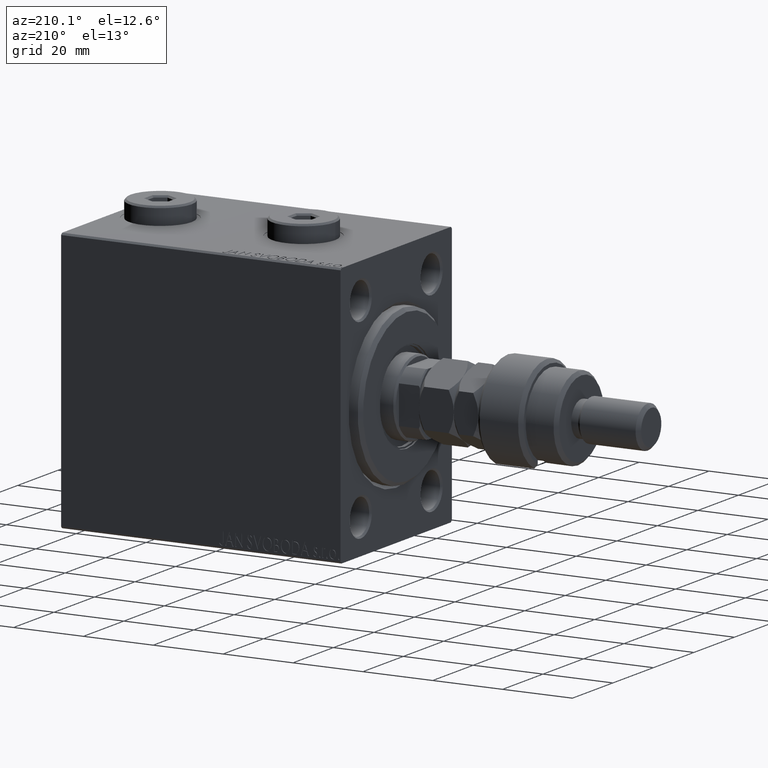
[diagram: clean part render]
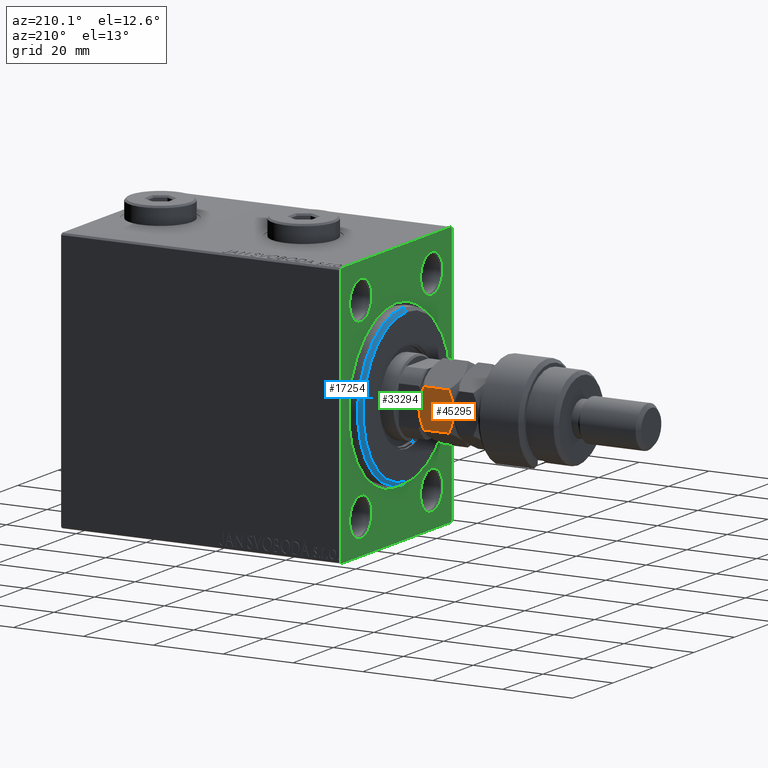
[diagram: same view with three faces highlighted in distinct colors, each labeled with its STEP entity id]
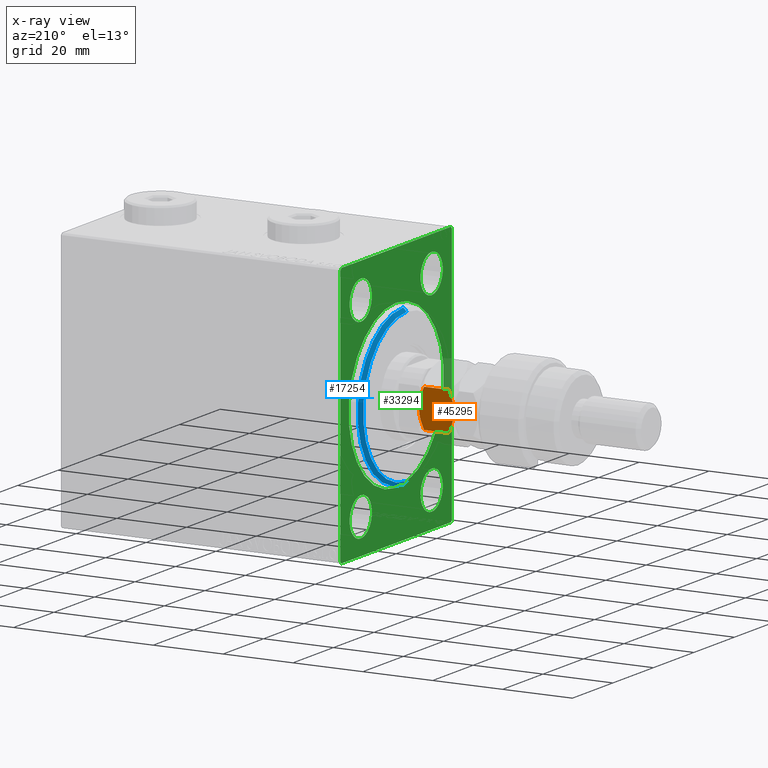
[diagram: x-ray of the same camera — body ghosted, the three highlighted faces saturated]
A machine part, auxiliary view with three faces highlighted in distinct colors.
The next image is the same camera in x-ray (body ghosted, the three faces saturated) — at least one of them is partly hidden behind the body in this view.
Their STEP definitions:

[orange] entity #45295 — the highlighted planar face has unit normal (0, -1, -0).
#1043 = CARTESIAN_POINT ( 'NONE',  ( -4.333978297711722938, 8.467431577757031036, 9.999999999999998224 ) ) ;
#2668 = PLANE ( 'NONE',  #18258 ) ;
#4012 = B_SPLINE_CURVE_WITH_KNOTS ( 'NONE', 3,
 ( #38750, #30655, #42665, #15713, #38495, #22820, #1043, #19150 ),
 .UNSPECIFIED., .F., .F.,
 ( 4, 2, 2, 4 ),
 ( 2.544312669947217931E-07, 0.002843014744722341131, 0.004264394901450013070, 0.005685775058177684575 ),
 .UNSPECIFIED. ) ;
#4520 = CARTESIAN_POINT ( 'NONE',  ( -4.749999999999993783, 8.227241335952166779, 10.00000000000000000 ) ) ;
#5270 = VERTEX_POINT ( 'NONE', #4520 ) ;
#6770 = CARTESIAN_POINT ( 'NONE',  ( -6.388382028668171841, 7.281321030665156790, 9.854124384224531852 ) ) ;
#9127 = EDGE_LOOP ( 'NONE', ( #37164, #19163, #16871, #38921, #23278, #17433 ) ) ;
#11452 = EDGE_CURVE ( 'NONE', #5270, #35434, #23185, .T. ) ;
#11535 = CARTESIAN_POINT ( 'NONE',  ( -3.111617971331824162, 9.173161641239182984, 0.1458756157754679816 ) ) ;
#11626 = CARTESIAN_POINT ( 'NONE',  ( -4.749999999999993783, 8.227241335952166779, 10.00000000000000000 ) ) ;
#11839 = CARTESIAN_POINT ( 'NONE',  ( -3.412354640325339130E-17, 10.96965511460288667, 8.530344885397118659 ) ) ;
#12778 = EDGE_CURVE ( 'NONE', #22414, #45628, #33345, .T. ) ;
#14357 = CARTESIAN_POINT ( 'NONE',  ( -8.755994125639032788, 5.914379549142415371, 8.959896877238170632 ) ) ;
#15697 = CARTESIAN_POINT ( 'NONE',  ( 7.043584025308272669E-16, 10.96965511460288667, 1.469655114602882007 ) ) ;
#15713 = CARTESIAN_POINT ( 'NONE',  ( -2.690254945947323506, 9.416435697371474234, 9.716537861568806278 ) ) ;
#16476 = EDGE_CURVE ( 'NONE', #31449, #18671, #43869, .T. ) ;
#16871 = ORIENTED_EDGE ( 'NONE', *, *, #11452, .F. ) ;
#17433 = ORIENTED_EDGE ( 'NONE', *, *, #43698, .F. ) ;
#17736 = EDGE_CURVE ( 'NONE', #31449, #5270, #4012, .T. ) ;
#18258 = AXIS2_PLACEMENT_3D ( 'NONE', #21011, #36452, #20536 ) ;
#18671 = VERTEX_POINT ( 'NONE', #39921 ) ;
#18918 = CARTESIAN_POINT ( 'NONE',  ( -7.993405681187618406, 6.354660192827338960, 0.6741748824712797683 ) ) ;
#19150 = CARTESIAN_POINT ( 'NONE',  ( -4.749999999999993783, 8.227241335952166779, 10.00000000000000000 ) ) ;
#19163 = ORIENTED_EDGE ( 'NONE', *, *, #46809, .F. ) ;
#19357 = CARTESIAN_POINT ( 'NONE',  ( -1.509821400858455398, 10.09795932238899852, 0.6716369694512650534 ) ) ;
#20536 = DIRECTION ( 'NONE',  ( 0.8660254037844389297, 0.4999999999999994449, 0.000000000000000000 ) ) ;
#21011 = CARTESIAN_POINT ( 'NONE',  ( 0.000000000000000000, 10.96965511460288667, 10.00000000000000000 ) ) ;
#21090 = LINE ( 'NONE', #36038, #31478 ) ;
#21205 = B_SPLINE_CURVE_WITH_KNOTS ( 'NONE', 3,
 ( #30160, #44611, #11535, #19357, #34298, #15697 ),
 .UNSPECIFIED., .F., .F.,
 ( 4, 2, 4 ),
 ( 0.005685775058177695851, 0.008508623398180325398, 0.01133147173818295494 ),
 .UNSPECIFIED. ) ;
#21506 = FACE_OUTER_BOUND ( 'NONE', #9127, .T. ) ;
#22118 = CARTESIAN_POINT ( 'NONE',  ( -6.408273631871772125, 7.269836608200945349, 0.1797418547120365750 ) ) ;
#22414 = VERTEX_POINT ( 'NONE', #45937 ) ;
#22595 = CARTESIAN_POINT ( 'NONE',  ( -5.166021702288269957, 7.987051094147307850, 9.131015171401357655E-16 ) ) ;
#22820 = CARTESIAN_POINT ( 'NONE',  ( -3.911732050025008789, 8.711215562523269895, 9.962294231267003752 ) ) ;
#23185 = B_SPLINE_CURVE_WITH_KNOTS ( 'NONE', 3,
 ( #11626, #26566, #6770, #47897, #14357, #40571 ),
 .UNSPECIFIED., .F., .F.,
 ( 4, 2, 4 ),
 ( 0.005685775058177684575, 0.008508623398180318459, 0.01133147173818295321 ),
 .UNSPECIFIED. ) ;
#23278 = ORIENTED_EDGE ( 'NONE', *, *, #16476, .T. ) ;
#26566 = CARTESIAN_POINT ( 'NONE',  ( -5.576215397865946777, 7.750225653585649077, 10.00000000000000000 ) ) ;
#28195 = CARTESIAN_POINT ( 'NONE',  ( 0.000000000000000000, 10.96965511460288667, 10.00000000000000000 ) ) ;
#28556 = CARTESIAN_POINT ( 'NONE',  ( -4.749999999999995559, 8.227241335952170331, 0.000000000000000000 ) ) ;
#28924 = DIRECTION ( 'NONE',  ( -0.000000000000000000, -0.000000000000000000, -1.000000000000000000 ) ) ;
#30160 = CARTESIAN_POINT ( 'NONE',  ( -4.749999999999995559, 8.227241335952170331, 0.000000000000000000 ) ) ;
#30193 = CARTESIAN_POINT ( 'NONE',  ( -6.809745054052670277, 7.038046974532860212, 0.2834621384311906689 ) ) ;
#30655 = CARTESIAN_POINT ( 'NONE',  ( -0.7448681452486597410, 10.53960529043279770, 8.960394709567207627 ) ) ;
#31449 = VERTEX_POINT ( 'NONE', #11839 ) ;
#31478 = VECTOR ( 'NONE', #32363, 1000.000000000000000 ) ;
#32363 = DIRECTION ( 'NONE',  ( -0.000000000000000000, -0.000000000000000000, -1.000000000000000000 ) ) ;
#33345 = B_SPLINE_CURVE_WITH_KNOTS ( 'NONE', 3,
 ( #46216, #37797, #18918, #30193, #22118, #44645, #22595, #37073 ),
 .UNSPECIFIED., .F., .F.,
 ( 4, 2, 2, 4 ),
 ( 2.544312669946945821E-07, 0.002843014744722347636, 0.004264394901450021744, 0.005685775058177695851 ),
 .UNSPECIFIED. ) ;
#34298 = CARTESIAN_POINT ( 'NONE',  ( -0.7440058743609621050, 10.54010312276192174, 1.040103122761827148 ) ) ;
#35121 = VECTOR ( 'NONE', #28924, 1000.000000000000000 ) ;
#35434 = VERTEX_POINT ( 'NONE', #40823 ) ;
#36038 = CARTESIAN_POINT ( 'NONE',  ( -9.500000000000000000, 5.484827557301449552, 10.00000000000000000 ) ) ;
#36452 = DIRECTION ( 'NONE',  ( 0.4999999999999995004, -0.8660254037844390407, 0.000000000000000000 ) ) ;
#37073 = CARTESIAN_POINT ( 'NONE',  ( -4.749999999999995559, 8.227241335952170331, 0.000000000000000000 ) ) ;
#37164 = ORIENTED_EDGE ( 'NONE', *, *, #12778, .F. ) ;
#37797 = CARTESIAN_POINT ( 'NONE',  ( -8.755131854751338594, 5.914877381471542961, 1.039605290432796147 ) ) ;
#38495 = CARTESIAN_POINT ( 'NONE',  ( -3.091726368128223879, 9.184646063703393537, 9.820258145287965590 ) ) ;
#38750 = CARTESIAN_POINT ( 'NONE',  ( -3.412354640325339130E-17, 10.96965511460288667, 8.530344885397118659 ) ) ;
#38921 = ORIENTED_EDGE ( 'NONE', *, *, #17736, .F. ) ;
#39921 = CARTESIAN_POINT ( 'NONE',  ( 7.043584025308272669E-16, 10.96965511460288667, 1.469655114602882007 ) ) ;
#40571 = CARTESIAN_POINT ( 'NONE',  ( -9.500000000000000000, 5.484827557301450440, 8.530344885397113330 ) ) ;
#40823 = CARTESIAN_POINT ( 'NONE',  ( -9.500000000000000000, 5.484827557301450440, 8.530344885397113330 ) ) ;
#42665 = CARTESIAN_POINT ( 'NONE',  ( -1.506594318812380706, 10.09982247907699993, 9.325825117528726338 ) ) ;
#43698 = EDGE_CURVE ( 'NONE', #45628, #18671, #21205, .T. ) ;
#43869 = LINE ( 'NONE', #28195, #35121 ) ;
#44611 = CARTESIAN_POINT ( 'NONE',  ( -3.923784602134044341, 8.704257018318687145, 8.233160247311796338E-16 ) ) ;
#44645 = CARTESIAN_POINT ( 'NONE',  ( -5.588267949974988547, 7.743267109381076096, 0.03770576873300184734 ) ) ;
#45295 = ADVANCED_FACE ( 'NONE', ( #21506 ), #2668, .F. ) ;
#45628 = VERTEX_POINT ( 'NONE', #28556 ) ;
#45937 = CARTESIAN_POINT ( 'NONE',  ( -9.500000000000000000, 5.484827557301450440, 1.469655114602887114 ) ) ;
#46216 = CARTESIAN_POINT ( 'NONE',  ( -9.500000000000000000, 5.484827557301450440, 1.469655114602887114 ) ) ;
#46809 = EDGE_CURVE ( 'NONE', #35434, #22414, #21090, .T. ) ;
#47897 = CARTESIAN_POINT ( 'NONE',  ( -7.990178599141542826, 6.356523349515339483, 9.328363030548731061 ) ) ;

[blue] entity #17254 — the highlighted conical surface has half-angle 45 deg.
#1074 = EDGE_CURVE ( 'NONE', #38998, #46591, #33613, .T. ) ;
#2169 = CARTESIAN_POINT ( 'NONE',  ( 3.000000000000000000, 0.000000000000000000, 21.50000000000000355 ) ) ;
#2891 = DIRECTION ( 'NONE',  ( 0.000000000000000000, 0.000000000000000000, -1.000000000000000000 ) ) ;
#2962 = CARTESIAN_POINT ( 'NONE',  ( 1.999999999999999112, 2.755455298081545172E-15, -22.50000000000000355 ) ) ;
#2987 = ORIENTED_EDGE ( 'NONE', *, *, #20028, .F. ) ;
#3969 = EDGE_CURVE ( 'NONE', #46591, #33591, #15896, .T. ) ;
#4117 = ORIENTED_EDGE ( 'NONE', *, *, #1074, .F. ) ;
#4318 = DIRECTION ( 'NONE',  ( 0.000000000000000000, 0.000000000000000000, -1.000000000000000000 ) ) ;
#4708 = LINE ( 'NONE', #37302, #21729 ) ;
#5380 = ORIENTED_EDGE ( 'NONE', *, *, #10487, .T. ) ;
#5833 = DIRECTION ( 'NONE',  ( -1.000000000000000000, 0.000000000000000000, 0.000000000000000000 ) ) ;
#6670 = EDGE_LOOP ( 'NONE', ( #15589, #4117, #5380, #2987 ) ) ;
#8531 = CONICAL_SURFACE ( 'NONE', #19474, 21.50000000000000355, 0.7853981633974466137 ) ;
#9838 = VERTEX_POINT ( 'NONE', #30846 ) ;
#10487 = EDGE_CURVE ( 'NONE', #38998, #9838, #4708, .T. ) ;
#15589 = ORIENTED_EDGE ( 'NONE', *, *, #3969, .F. ) ;
#15896 = LINE ( 'NONE', #29858, #45450 ) ;
#17076 = CARTESIAN_POINT ( 'NONE',  ( 1.999999999999999112, 0.000000000000000000, 0.000000000000000000 ) ) ;
#17254 = ADVANCED_FACE ( 'NONE', ( #36888 ), #8531, .T. ) ;
#18727 = CARTESIAN_POINT ( 'NONE',  ( 3.000000000000000000, 0.000000000000000000, 0.000000000000000000 ) ) ;
#19474 = AXIS2_PLACEMENT_3D ( 'NONE', #18727, #32714, #22180 ) ;
#20028 = EDGE_CURVE ( 'NONE', #33591, #9838, #39156, .T. ) ;
#21729 = VECTOR ( 'NONE', #41707, 1000.000000000000000 ) ;
#22180 = DIRECTION ( 'NONE',  ( 0.000000000000000000, 0.000000000000000000, 1.000000000000000000 ) ) ;
#26587 = DIRECTION ( 'NONE',  ( 1.000000000000000000, -0.000000000000000000, 0.000000000000000000 ) ) ;
#29858 = CARTESIAN_POINT ( 'NONE',  ( 3.000000000000000000, 2.632990618166810024E-15, -21.50000000000000355 ) ) ;
#30268 = CARTESIAN_POINT ( 'NONE',  ( 3.000000000000000000, 0.000000000000000000, 0.000000000000000000 ) ) ;
#30846 = CARTESIAN_POINT ( 'NONE',  ( 1.999999999999999112, 0.000000000000000000, 22.50000000000000355 ) ) ;
#32714 = DIRECTION ( 'NONE',  ( -1.000000000000000000, 0.000000000000000000, 0.000000000000000000 ) ) ;
#33591 = VERTEX_POINT ( 'NONE', #2962 ) ;
#33613 = CIRCLE ( 'NONE', #46161, 21.50000000000000355 ) ;
#36888 = FACE_OUTER_BOUND ( 'NONE', #6670, .T. ) ;
#37302 = CARTESIAN_POINT ( 'NONE',  ( 3.000000000000000000, 0.000000000000000000, 21.50000000000000355 ) ) ;
#38426 = DIRECTION ( 'NONE',  ( -0.7071067811865487940, 8.659560562354919300E-17, -0.7071067811865463515 ) ) ;
#38998 = VERTEX_POINT ( 'NONE', #2169 ) ;
#39156 = CIRCLE ( 'NONE', #43060, 22.50000000000000355 ) ;
#41707 = DIRECTION ( 'NONE',  ( -0.7071067811865487940, 0.000000000000000000, 0.7071067811865463515 ) ) ;
#43060 = AXIS2_PLACEMENT_3D ( 'NONE', #17076, #5833, #2891 ) ;
#45450 = VECTOR ( 'NONE', #38426, 1000.000000000000000 ) ;
#46161 = AXIS2_PLACEMENT_3D ( 'NONE', #30268, #26587, #4318 ) ;
#46591 = VERTEX_POINT ( 'NONE', #48300 ) ;
#48300 = CARTESIAN_POINT ( 'NONE',  ( 3.000000000000000000, 2.694222958124177598E-15, -21.50000000000000355 ) ) ;

[green] entity #33294 — the highlighted planar face has unit normal (1, 0, 0).
#61 = CARTESIAN_POINT ( 'NONE',  ( 0.000000000000000000, -27.49999999999999645, 36.99999999999998579 ) ) ;
#1418 = ORIENTED_EDGE ( 'NONE', *, *, #12989, .F. ) ;
#1429 = VERTEX_POINT ( 'NONE', #16024 ) ;
#1490 = VERTEX_POINT ( 'NONE', #20162 ) ;
#1836 = CARTESIAN_POINT ( 'NONE',  ( 0.000000000000000000, 26.99999999999998934, -37.50000000000000000 ) ) ;
#2509 = DIRECTION ( 'NONE',  ( 0.000000000000000000, 0.000000000000000000, -1.000000000000000000 ) ) ;
#3016 = DIRECTION ( 'NONE',  ( 0.000000000000000000, 0.000000000000000000, -1.000000000000000000 ) ) ;
#3561 = EDGE_CURVE ( 'NONE', #41839, #5444, #32122, .T. ) ;
#3639 = ORIENTED_EDGE ( 'NONE', *, *, #43994, .T. ) ;
#4379 = CARTESIAN_POINT ( 'NONE',  ( 0.000000000000000000, 27.50000000000000355, -36.99999999999998579 ) ) ;
#4514 = EDGE_LOOP ( 'NONE', ( #45081, #36787 ) ) ;
#4805 = FACE_BOUND ( 'NONE', #16231, .T. ) ;
#5414 = CARTESIAN_POINT ( 'NONE',  ( 0.000000000000000000, 26.99999999999999645, 37.50000000000000000 ) ) ;
#5444 = VERTEX_POINT ( 'NONE', #26932 ) ;
#5551 = VERTEX_POINT ( 'NONE', #15906 ) ;
#5759 = EDGE_LOOP ( 'NONE', ( #1418, #27160, #22791, #37643, #17839, #32754, #28673, #3639 ) ) ;
#5959 = AXIS2_PLACEMENT_3D ( 'NONE', #29840, #15877, #37934 ) ;
#6539 = DIRECTION ( 'NONE',  ( 1.000000000000000000, 0.000000000000000000, 0.000000000000000000 ) ) ;
#6665 = AXIS2_PLACEMENT_3D ( 'NONE', #44205, #10641, #18463 ) ;
#6807 = DIRECTION ( 'NONE',  ( 1.000000000000000000, 0.000000000000000000, 0.000000000000000000 ) ) ;
#7187 = VERTEX_POINT ( 'NONE', #32381 ) ;
#7609 = DIRECTION ( 'NONE',  ( 0.000000000000000000, 0.000000000000000000, -1.000000000000000000 ) ) ;
#8000 = CIRCLE ( 'NONE', #21300, 23.50000000000003197 ) ;
#8234 = LINE ( 'NONE', #38612, #28397 ) ;
#8738 = EDGE_LOOP ( 'NONE', ( #24954, #44823 ) ) ;
#8811 = DIRECTION ( 'NONE',  ( 1.000000000000000000, 0.000000000000000000, 0.000000000000000000 ) ) ;
#8933 = VECTOR ( 'NONE', #29670, 1000.000000000000114 ) ;
#9319 = VECTOR ( 'NONE', #43403, 1000.000000000000000 ) ;
#9619 = VERTEX_POINT ( 'NONE', #40449 ) ;
#9636 = DIRECTION ( 'NONE',  ( 0.000000000000000000, 0.000000000000000000, -1.000000000000000000 ) ) ;
#9702 = AXIS2_PLACEMENT_3D ( 'NONE', #32997, #6807, #36214 ) ;
#9871 = AXIS2_PLACEMENT_3D ( 'NONE', #33333, #14724, #7609 ) ;
#9992 = ORIENTED_EDGE ( 'NONE', *, *, #37855, .T. ) ;
#10318 = CARTESIAN_POINT ( 'NONE',  ( 0.000000000000000000, 26.99999999999999645, 37.50000000000000000 ) ) ;
#10641 = DIRECTION ( 'NONE',  ( 1.000000000000000000, 0.000000000000000000, 0.000000000000000000 ) ) ;
#11118 = AXIS2_PLACEMENT_3D ( 'NONE', #27172, #15196, #11749 ) ;
#11416 = EDGE_CURVE ( 'NONE', #7187, #45865, #30249, .T. ) ;
#11749 = DIRECTION ( 'NONE',  ( 0.000000000000000000, 0.000000000000000000, -1.000000000000000000 ) ) ;
#12114 = AXIS2_PLACEMENT_3D ( 'NONE', #14602, #6539, #29533 ) ;
#12393 = DIRECTION ( 'NONE',  ( 1.000000000000000000, 0.000000000000000000, 0.000000000000000000 ) ) ;
#12989 = EDGE_CURVE ( 'NONE', #9619, #1490, #20860, .T. ) ;
#13302 = FACE_BOUND ( 'NONE', #8738, .T. ) ;
#13515 = ORIENTED_EDGE ( 'NONE', *, *, #46866, .T. ) ;
#14556 = CIRCLE ( 'NONE', #9871, 5.499999999999994671 ) ;
#14602 = CARTESIAN_POINT ( 'NONE',  ( 0.000000000000000000, -17.50000000000000000, 27.50000000000000000 ) ) ;
#14724 = DIRECTION ( 'NONE',  ( 1.000000000000000000, 0.000000000000000000, 0.000000000000000000 ) ) ;
#14739 = DIRECTION ( 'NONE',  ( 1.000000000000000000, 0.000000000000000000, 0.000000000000000000 ) ) ;
#14906 = DIRECTION ( 'NONE',  ( -0.000000000000000000, -0.7071067811865474617, 0.7071067811865474617 ) ) ;
#14921 = AXIS2_PLACEMENT_3D ( 'NONE', #32867, #14739, #3016 ) ;
#15196 = DIRECTION ( 'NONE',  ( 1.000000000000000000, 0.000000000000000000, 0.000000000000000000 ) ) ;
#15877 = DIRECTION ( 'NONE',  ( 1.000000000000000000, 0.000000000000000000, 0.000000000000000000 ) ) ;
#15906 = CARTESIAN_POINT ( 'NONE',  ( 0.000000000000000000, -26.99999999999999645, 37.49999999999998579 ) ) ;
#16024 = CARTESIAN_POINT ( 'NONE',  ( 0.000000000000000000, 27.49999999999999645, 37.00000000000000000 ) ) ;
#16076 = DIRECTION ( 'NONE',  ( 0.000000000000000000, -9.251858538542971581E-17, 1.000000000000000000 ) ) ;
#16231 = EDGE_LOOP ( 'NONE', ( #22713, #42169 ) ) ;
#16955 = CARTESIAN_POINT ( 'NONE',  ( 0.000000000000000000, 17.50000000000000000, 22.00000000000001066 ) ) ;
#17284 = CARTESIAN_POINT ( 'NONE',  ( 0.000000000000000000, -17.50000000000000000, 22.00000000000001066 ) ) ;
#17821 = CARTESIAN_POINT ( 'NONE',  ( 0.000000000000000000, 2.877919977996283870E-15, -23.50000000000003197 ) ) ;
#17839 = ORIENTED_EDGE ( 'NONE', *, *, #44298, .F. ) ;
#18265 = CARTESIAN_POINT ( 'NONE',  ( 0.000000000000000000, -27.49999999999999645, -37.50000000000000000 ) ) ;
#18322 = AXIS2_PLACEMENT_3D ( 'NONE', #23408, #12393, #9636 ) ;
#18463 = DIRECTION ( 'NONE',  ( 0.000000000000000000, 0.000000000000000000, -1.000000000000000000 ) ) ;
#19687 = VECTOR ( 'NONE', #26905, 1000.000000000000114 ) ;
#20162 = CARTESIAN_POINT ( 'NONE',  ( 0.000000000000000000, -27.49999999999999645, -37.00000000000000000 ) ) ;
#20498 = AXIS2_PLACEMENT_3D ( 'NONE', #36047, #32116, #2509 ) ;
#20531 = AXIS2_PLACEMENT_3D ( 'NONE', #31092, #8811, #20555 ) ;
#20555 = DIRECTION ( 'NONE',  ( 0.000000000000000000, 0.000000000000000000, -1.000000000000000000 ) ) ;
#20860 = LINE ( 'NONE', #39970, #9319 ) ;
#21005 = ORIENTED_EDGE ( 'NONE', *, *, #35660, .T. ) ;
#21130 = FACE_BOUND ( 'NONE', #4514, .T. ) ;
#21300 = AXIS2_PLACEMENT_3D ( 'NONE', #37248, #29637, #21589 ) ;
#21354 = VERTEX_POINT ( 'NONE', #38889 ) ;
#21589 = DIRECTION ( 'NONE',  ( 0.000000000000000000, 0.000000000000000000, -1.000000000000000000 ) ) ;
#22206 = CIRCLE ( 'NONE', #9702, 5.499999999999991118 ) ;
#22713 = ORIENTED_EDGE ( 'NONE', *, *, #24375, .T. ) ;
#22791 = ORIENTED_EDGE ( 'NONE', *, *, #38088, .F. ) ;
#22987 = LINE ( 'NONE', #4379, #19687 ) ;
#23083 = CIRCLE ( 'NONE', #6665, 5.499999999999991118 ) ;
#23175 = PLANE ( 'NONE',  #18322 ) ;
#23334 = CARTESIAN_POINT ( 'NONE',  ( 0.000000000000000000, -17.50000000000000000, -32.99999999999998579 ) ) ;
#23408 = CARTESIAN_POINT ( 'NONE',  ( 0.000000000000000000, 0.000000000000000000, 0.000000000000000000 ) ) ;
#24375 = EDGE_CURVE ( 'NONE', #26986, #37313, #41624, .T. ) ;
#24954 = ORIENTED_EDGE ( 'NONE', *, *, #34432, .T. ) ;
#25399 = CIRCLE ( 'NONE', #12114, 5.499999999999994671 ) ;
#26827 = VECTOR ( 'NONE', #14906, 1000.000000000000114 ) ;
#26905 = DIRECTION ( 'NONE',  ( 0.000000000000000000, -0.7071067811865474617, -0.7071067811865474617 ) ) ;
#26932 = CARTESIAN_POINT ( 'NONE',  ( 0.000000000000000000, 17.50000000000000000, -22.00000000000000711 ) ) ;
#26986 = VERTEX_POINT ( 'NONE', #41202 ) ;
#27160 = ORIENTED_EDGE ( 'NONE', *, *, #32690, .T. ) ;
#27172 = CARTESIAN_POINT ( 'NONE',  ( 0.000000000000000000, -17.50000000000000000, 27.50000000000000000 ) ) ;
#27539 = VERTEX_POINT ( 'NONE', #17821 ) ;
#27601 = VERTEX_POINT ( 'NONE', #44278 ) ;
#28184 = ORIENTED_EDGE ( 'NONE', *, *, #47484, .T. ) ;
#28292 = CARTESIAN_POINT ( 'NONE',  ( 0.000000000000000000, -17.50000000000000000, -22.00000000000000711 ) ) ;
#28363 = EDGE_CURVE ( 'NONE', #5444, #41839, #22206, .T. ) ;
#28397 = VECTOR ( 'NONE', #16076, 1000.000000000000000 ) ;
#28673 = ORIENTED_EDGE ( 'NONE', *, *, #11416, .F. ) ;
#29015 = CARTESIAN_POINT ( 'NONE',  ( 0.000000000000000000, 27.49999999999999645, 37.50000000000000000 ) ) ;
#29533 = DIRECTION ( 'NONE',  ( 0.000000000000000000, 0.000000000000000000, -1.000000000000000000 ) ) ;
#29584 = VECTOR ( 'NONE', #40809, 1000.000000000000000 ) ;
#29637 = DIRECTION ( 'NONE',  ( 1.000000000000000000, 0.000000000000000000, 0.000000000000000000 ) ) ;
#29670 = DIRECTION ( 'NONE',  ( -0.000000000000000000, 0.7071067811865474617, 0.7071067811865474617 ) ) ;
#29840 = CARTESIAN_POINT ( 'NONE',  ( 0.000000000000000000, 0.000000000000000000, 0.000000000000000000 ) ) ;
#30212 = CIRCLE ( 'NONE', #5959, 23.50000000000003197 ) ;
#30249 = LINE ( 'NONE', #18265, #29584 ) ;
#30894 = LINE ( 'NONE', #5414, #37783 ) ;
#30904 = VERTEX_POINT ( 'NONE', #10318 ) ;
#31092 = CARTESIAN_POINT ( 'NONE',  ( 0.000000000000000000, -17.50000000000000000, -27.49999999999999645 ) ) ;
#31376 = VERTEX_POINT ( 'NONE', #17284 ) ;
#31849 = DIRECTION ( 'NONE',  ( -0.000000000000000000, 0.7071067811865474617, -0.7071067811865474617 ) ) ;
#31907 = FACE_BOUND ( 'NONE', #48013, .T. ) ;
#32116 = DIRECTION ( 'NONE',  ( 1.000000000000000000, 0.000000000000000000, 0.000000000000000000 ) ) ;
#32122 = CIRCLE ( 'NONE', #14921, 5.499999999999991118 ) ;
#32381 = CARTESIAN_POINT ( 'NONE',  ( 0.000000000000000000, -26.99999999999999645, -37.50000000000000000 ) ) ;
#32690 = EDGE_CURVE ( 'NONE', #9619, #5551, #37511, .T. ) ;
#32754 = ORIENTED_EDGE ( 'NONE', *, *, #41199, .T. ) ;
#32867 = CARTESIAN_POINT ( 'NONE',  ( 0.000000000000000000, 17.50000000000000000, -27.49999999999999645 ) ) ;
#32997 = CARTESIAN_POINT ( 'NONE',  ( 0.000000000000000000, 17.50000000000000000, -27.49999999999999645 ) ) ;
#33294 = ADVANCED_FACE ( 'NONE', ( #43190, #31907, #13302, #4805, #21130, #45952 ), #23175, .F. ) ;
#33333 = CARTESIAN_POINT ( 'NONE',  ( 0.000000000000000000, 17.50000000000000000, 27.50000000000000000 ) ) ;
#33508 = LINE ( 'NONE', #35464, #26827 ) ;
#33956 = CARTESIAN_POINT ( 'NONE',  ( 0.000000000000000000, -17.50000000000000000, 32.99999999999999289 ) ) ;
#33965 = VERTEX_POINT ( 'NONE', #33956 ) ;
#34432 = EDGE_CURVE ( 'NONE', #33965, #31376, #25399, .T. ) ;
#34475 = VECTOR ( 'NONE', #42581, 1000.000000000000000 ) ;
#35464 = CARTESIAN_POINT ( 'NONE',  ( 0.000000000000000000, -26.99999999999999645, -37.50000000000000000 ) ) ;
#35660 = EDGE_CURVE ( 'NONE', #42750, #36347, #23083, .T. ) ;
#35882 = LINE ( 'NONE', #29015, #34475 ) ;
#36047 = CARTESIAN_POINT ( 'NONE',  ( 0.000000000000000000, 17.50000000000000000, 27.50000000000000000 ) ) ;
#36214 = DIRECTION ( 'NONE',  ( 0.000000000000000000, 0.000000000000000000, -1.000000000000000000 ) ) ;
#36347 = VERTEX_POINT ( 'NONE', #28292 ) ;
#36787 = ORIENTED_EDGE ( 'NONE', *, *, #3561, .T. ) ;
#37072 = EDGE_LOOP ( 'NONE', ( #13515, #9992 ) ) ;
#37248 = CARTESIAN_POINT ( 'NONE',  ( 0.000000000000000000, 0.000000000000000000, 0.000000000000000000 ) ) ;
#37313 = VERTEX_POINT ( 'NONE', #16955 ) ;
#37511 = LINE ( 'NONE', #61, #8933 ) ;
#37569 = EDGE_CURVE ( 'NONE', #37313, #26986, #14556, .T. ) ;
#37643 = ORIENTED_EDGE ( 'NONE', *, *, #44553, .T. ) ;
#37783 = VECTOR ( 'NONE', #31849, 1000.000000000000114 ) ;
#37855 = EDGE_CURVE ( 'NONE', #27539, #21354, #30212, .T. ) ;
#37934 = DIRECTION ( 'NONE',  ( 0.000000000000000000, 0.000000000000000000, -1.000000000000000000 ) ) ;
#38088 = EDGE_CURVE ( 'NONE', #30904, #5551, #35882, .T. ) ;
#38236 = CARTESIAN_POINT ( 'NONE',  ( 0.000000000000000000, 17.50000000000000000, -32.99999999999998579 ) ) ;
#38612 = CARTESIAN_POINT ( 'NONE',  ( 0.000000000000000000, 27.50000000000000355, -37.50000000000000000 ) ) ;
#38889 = CARTESIAN_POINT ( 'NONE',  ( 0.000000000000000000, 0.000000000000000000, 23.50000000000003197 ) ) ;
#39970 = CARTESIAN_POINT ( 'NONE',  ( 0.000000000000000000, -27.49999999999999645, 37.49999999999998579 ) ) ;
#40212 = CIRCLE ( 'NONE', #11118, 5.499999999999994671 ) ;
#40449 = CARTESIAN_POINT ( 'NONE',  ( 0.000000000000000000, -27.49999999999999645, 36.99999999999998579 ) ) ;
#40809 = DIRECTION ( 'NONE',  ( 0.000000000000000000, 1.000000000000000000, 0.000000000000000000 ) ) ;
#41199 = EDGE_CURVE ( 'NONE', #27601, #45865, #22987, .T. ) ;
#41202 = CARTESIAN_POINT ( 'NONE',  ( 0.000000000000000000, 17.50000000000000000, 32.99999999999999289 ) ) ;
#41624 = CIRCLE ( 'NONE', #20498, 5.499999999999994671 ) ;
#41839 = VERTEX_POINT ( 'NONE', #38236 ) ;
#42169 = ORIENTED_EDGE ( 'NONE', *, *, #37569, .T. ) ;
#42581 = DIRECTION ( 'NONE',  ( 0.000000000000000000, -1.000000000000000000, -2.523234146875355998E-16 ) ) ;
#42750 = VERTEX_POINT ( 'NONE', #23334 ) ;
#43190 = FACE_BOUND ( 'NONE', #37072, .T. ) ;
#43403 = DIRECTION ( 'NONE',  ( 0.000000000000000000, 0.000000000000000000, -1.000000000000000000 ) ) ;
#43994 = EDGE_CURVE ( 'NONE', #7187, #1490, #33508, .T. ) ;
#43997 = CIRCLE ( 'NONE', #20531, 5.499999999999991118 ) ;
#44205 = CARTESIAN_POINT ( 'NONE',  ( 0.000000000000000000, -17.50000000000000000, -27.49999999999999645 ) ) ;
#44278 = CARTESIAN_POINT ( 'NONE',  ( 0.000000000000000000, 27.50000000000000355, -36.99999999999998579 ) ) ;
#44298 = EDGE_CURVE ( 'NONE', #27601, #1429, #8234, .T. ) ;
#44553 = EDGE_CURVE ( 'NONE', #30904, #1429, #30894, .T. ) ;
#44823 = ORIENTED_EDGE ( 'NONE', *, *, #46946, .T. ) ;
#45081 = ORIENTED_EDGE ( 'NONE', *, *, #28363, .T. ) ;
#45865 = VERTEX_POINT ( 'NONE', #1836 ) ;
#45952 = FACE_OUTER_BOUND ( 'NONE', #5759, .T. ) ;
#46866 = EDGE_CURVE ( 'NONE', #21354, #27539, #8000, .T. ) ;
#46946 = EDGE_CURVE ( 'NONE', #31376, #33965, #40212, .T. ) ;
#47484 = EDGE_CURVE ( 'NONE', #36347, #42750, #43997, .T. ) ;
#48013 = EDGE_LOOP ( 'NONE', ( #28184, #21005 ) ) ;